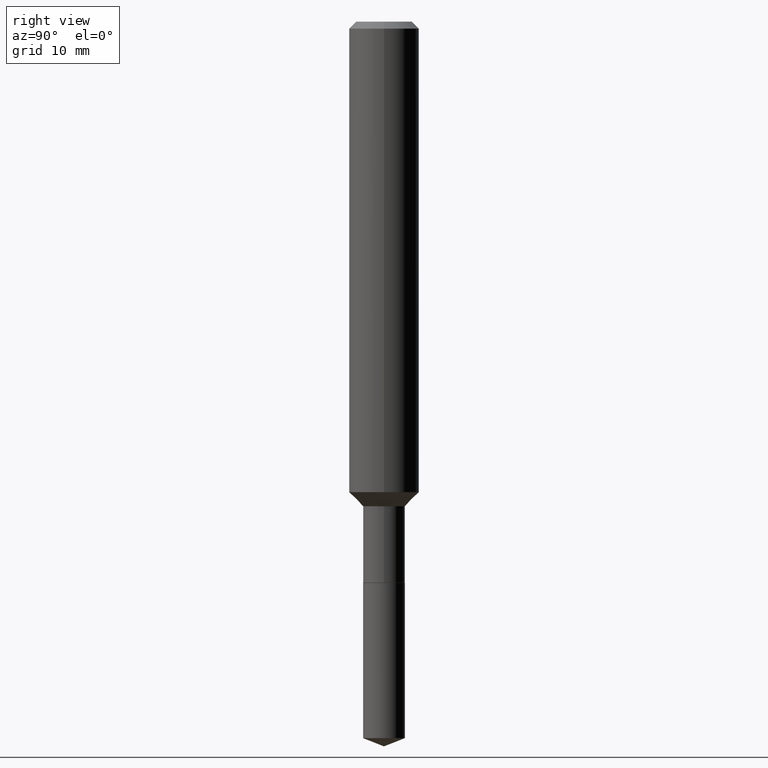
[diagram: clean part render]
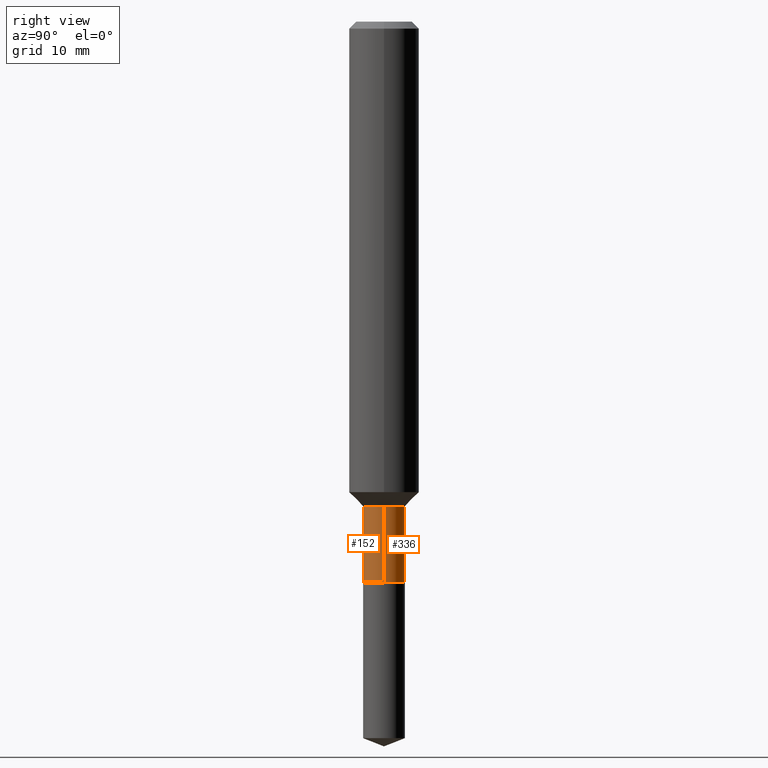
[diagram: same view with one multi-face feature highlighted, each face labeled with its STEP entity id]
A machine part, right view. The highlighted faces form ONE feature: a constant-radius fillet chain: 2 tangent blend faces with common blend radius 1.7856 mm. The faces share edges in the B-rep.
Their STEP definitions:
[1] entity #336 (Cylinder):
#12 = FACE_OUTER_BOUND ( 'NONE', #375, .T. ) ;
#17 = CARTESIAN_POINT ( 'NONE',  ( -0.07029999999999998750, 4.995115432393503418E-16, -3.458011368449198169E-30 ) ) ;
#26 = DIRECTION ( 'NONE',  ( 1.000000000000000000, -6.982962677686266711E-15, 0.000000000000000000 ) ) ;
#30 = VERTEX_POINT ( 'NONE', #86 ) ;
#50 = EDGE_CURVE ( 'NONE', #414, #110, #463, .T. ) ;
#60 = CARTESIAN_POINT ( 'NONE',  ( 0.07029999999999998750, -7.087008821583815933E-15, -1.889200000000000212 ) ) ;
#62 = AXIS2_PLACEMENT_3D ( 'NONE', #202, #333, #26 ) ;
#63 = EDGE_CURVE ( 'NONE', #296, #30, #125, .T. ) ;
#86 = CARTESIAN_POINT ( 'NONE',  ( 0.07029999999999995974, -6.190396413768896991E-15, -1.632400000000000295 ) ) ;
#91 = VECTOR ( 'NONE', #210, 39.37007874015748143 ) ;
#110 = VERTEX_POINT ( 'NONE', #177 ) ;
#120 = DIRECTION ( 'NONE',  ( 1.000000000000000000, -6.982962677686266711E-15, 4.876176775795935232E-29 ) ) ;
#125 = LINE ( 'NONE', #196, #257 ) ;
#132 = EDGE_CURVE ( 'NONE', #296, #414, #449, .T. ) ;
#144 = AXIS2_PLACEMENT_3D ( 'NONE', #460, #165, #120 ) ;
#165 = DIRECTION ( 'NONE',  ( -2.445468806185136597E-29, 3.491481338843145583E-15, 1.000000000000000000 ) ) ;
#168 = EDGE_CURVE ( 'NONE', #30, #110, #312, .T. ) ;
#169 = CARTESIAN_POINT ( 'NONE',  ( -0.07030000000000000138, -5.648288798195662455E-15, -1.889200000000000212 ) ) ;
#177 = CARTESIAN_POINT ( 'NONE',  ( -0.07029999999999995974, -5.648288798195662455E-15, -1.632400000000000295 ) ) ;
#187 = ORIENTED_EDGE ( 'NONE', *, *, #63, .F. ) ;
#196 = CARTESIAN_POINT ( 'NONE',  ( 0.07029999999999998750, -4.909022762413444543E-16, 3.427952273384541736E-30 ) ) ;
#198 = DIRECTION ( 'NONE',  ( -2.445468806185136597E-29, 3.491481338843145583E-15, 1.000000000000000000 ) ) ;
#202 = CARTESIAN_POINT ( 'NONE',  ( 4.619979668644960403E-29, -6.596106545342470986E-15, -1.889200000000000212 ) ) ;
#210 = DIRECTION ( 'NONE',  ( -2.445468806185136877E-29, 3.491481338843145188E-15, 1.000000000000000000 ) ) ;
#224 = ORIENTED_EDGE ( 'NONE', *, *, #50, .T. ) ;
#257 = VECTOR ( 'NONE', #318, 39.37007874015748143 ) ;
#273 = DIRECTION ( 'NONE',  ( 1.000000000000000000, -6.982962677686269077E-15, 0.000000000000000000 ) ) ;
#296 = VERTEX_POINT ( 'NONE', #60 ) ;
#310 = ORIENTED_EDGE ( 'NONE', *, *, #132, .T. ) ;
#312 = CIRCLE ( 'NONE', #325, 0.07029999999999995974 ) ;
#318 = DIRECTION ( 'NONE',  ( -2.445468806185136877E-29, 3.491481338843145188E-15, 1.000000000000000000 ) ) ;
#325 = AXIS2_PLACEMENT_3D ( 'NONE', #346, #198, #273 ) ;
#333 = DIRECTION ( 'NONE',  ( -2.445468806185136597E-29, 3.491481338843145583E-15, 1.000000000000000000 ) ) ;
#336 = ADVANCED_FACE ( 'NONE', ( #12 ), #429, .T. ) ;
#346 = CARTESIAN_POINT ( 'NONE',  ( 3.991983279216617405E-29, -5.699494137527552043E-15, -1.632400000000000295 ) ) ;
#350 = ORIENTED_EDGE ( 'NONE', *, *, #168, .F. ) ;
#375 = EDGE_LOOP ( 'NONE', ( #310, #224, #350, #187 ) ) ;
#414 = VERTEX_POINT ( 'NONE', #169 ) ;
#429 = CYLINDRICAL_SURFACE ( 'NONE', #144, 0.07029999999999998750 ) ;
#449 = CIRCLE ( 'NONE', #62, 0.07029999999999998750 ) ;
#460 = CARTESIAN_POINT ( 'NONE',  ( 0.000000000000000000, 0.000000000000000000, 0.000000000000000000 ) ) ;
#463 = LINE ( 'NONE', #17, #91 ) ;
[2] entity #152 (Cylinder):
#6 = ORIENTED_EDGE ( 'NONE', *, *, #50, .F. ) ;
#17 = CARTESIAN_POINT ( 'NONE',  ( -0.07029999999999998750, 4.995115432393503418E-16, -3.458011368449198169E-30 ) ) ;
#30 = VERTEX_POINT ( 'NONE', #86 ) ;
#50 = EDGE_CURVE ( 'NONE', #414, #110, #463, .T. ) ;
#60 = CARTESIAN_POINT ( 'NONE',  ( 0.07029999999999998750, -7.087008821583815933E-15, -1.889200000000000212 ) ) ;
#63 = EDGE_CURVE ( 'NONE', #296, #30, #125, .T. ) ;
#86 = CARTESIAN_POINT ( 'NONE',  ( 0.07029999999999995974, -6.190396413768896991E-15, -1.632400000000000295 ) ) ;
#91 = VECTOR ( 'NONE', #210, 39.37007874015748143 ) ;
#102 = AXIS2_PLACEMENT_3D ( 'NONE', #113, #264, #234 ) ;
#105 = CYLINDRICAL_SURFACE ( 'NONE', #461, 0.07029999999999998750 ) ;
#107 = ORIENTED_EDGE ( 'NONE', *, *, #221, .F. ) ;
#110 = VERTEX_POINT ( 'NONE', #177 ) ;
#113 = CARTESIAN_POINT ( 'NONE',  ( 3.991983279216617405E-29, -5.699494137527552043E-15, -1.632400000000000295 ) ) ;
#125 = LINE ( 'NONE', #196, #257 ) ;
#137 = CIRCLE ( 'NONE', #301, 0.07029999999999998750 ) ;
#150 = CIRCLE ( 'NONE', #102, 0.07029999999999995974 ) ;
#152 = ADVANCED_FACE ( 'NONE', ( #352 ), #105, .T. ) ;
#169 = CARTESIAN_POINT ( 'NONE',  ( -0.07030000000000000138, -5.648288798195662455E-15, -1.889200000000000212 ) ) ;
#177 = CARTESIAN_POINT ( 'NONE',  ( -0.07029999999999995974, -5.648288798195662455E-15, -1.632400000000000295 ) ) ;
#193 = DIRECTION ( 'NONE',  ( -2.445468806185136597E-29, 3.491481338843145583E-15, 1.000000000000000000 ) ) ;
#196 = CARTESIAN_POINT ( 'NONE',  ( 0.07029999999999998750, -4.909022762413444543E-16, 3.427952273384541736E-30 ) ) ;
#197 = DIRECTION ( 'NONE',  ( 1.000000000000000000, -6.982962677686266711E-15, 0.000000000000000000 ) ) ;
#210 = DIRECTION ( 'NONE',  ( -2.445468806185136877E-29, 3.491481338843145188E-15, 1.000000000000000000 ) ) ;
#221 = EDGE_CURVE ( 'NONE', #110, #30, #150, .T. ) ;
#226 = DIRECTION ( 'NONE',  ( -2.445468806185136597E-29, 3.491481338843145583E-15, 1.000000000000000000 ) ) ;
#234 = DIRECTION ( 'NONE',  ( 1.000000000000000000, -6.982962677686269077E-15, 0.000000000000000000 ) ) ;
#240 = ORIENTED_EDGE ( 'NONE', *, *, #401, .T. ) ;
#257 = VECTOR ( 'NONE', #318, 39.37007874015748143 ) ;
#264 = DIRECTION ( 'NONE',  ( -2.445468806185136597E-29, 3.491481338843145583E-15, 1.000000000000000000 ) ) ;
#266 = CARTESIAN_POINT ( 'NONE',  ( 4.619979668644960403E-29, -6.596106545342470986E-15, -1.889200000000000212 ) ) ;
#293 = ORIENTED_EDGE ( 'NONE', *, *, #63, .T. ) ;
#296 = VERTEX_POINT ( 'NONE', #60 ) ;
#301 = AXIS2_PLACEMENT_3D ( 'NONE', #266, #193, #197 ) ;
#313 = CARTESIAN_POINT ( 'NONE',  ( 0.000000000000000000, 0.000000000000000000, 0.000000000000000000 ) ) ;
#318 = DIRECTION ( 'NONE',  ( -2.445468806185136877E-29, 3.491481338843145188E-15, 1.000000000000000000 ) ) ;
#330 = EDGE_LOOP ( 'NONE', ( #6, #240, #293, #107 ) ) ;
#352 = FACE_OUTER_BOUND ( 'NONE', #330, .T. ) ;
#401 = EDGE_CURVE ( 'NONE', #414, #296, #137, .T. ) ;
#414 = VERTEX_POINT ( 'NONE', #169 ) ;
#461 = AXIS2_PLACEMENT_3D ( 'NONE', #313, #226, #466 ) ;
#463 = LINE ( 'NONE', #17, #91 ) ;
#466 = DIRECTION ( 'NONE',  ( 1.000000000000000000, -6.982962677686266711E-15, 4.876176775795935232E-29 ) ) ;